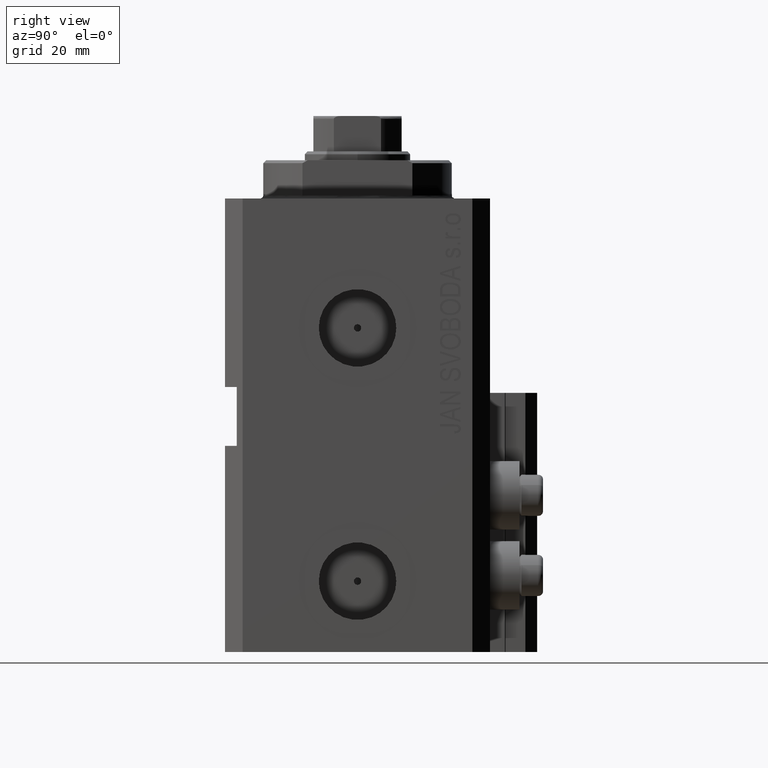
[diagram: clean part render]
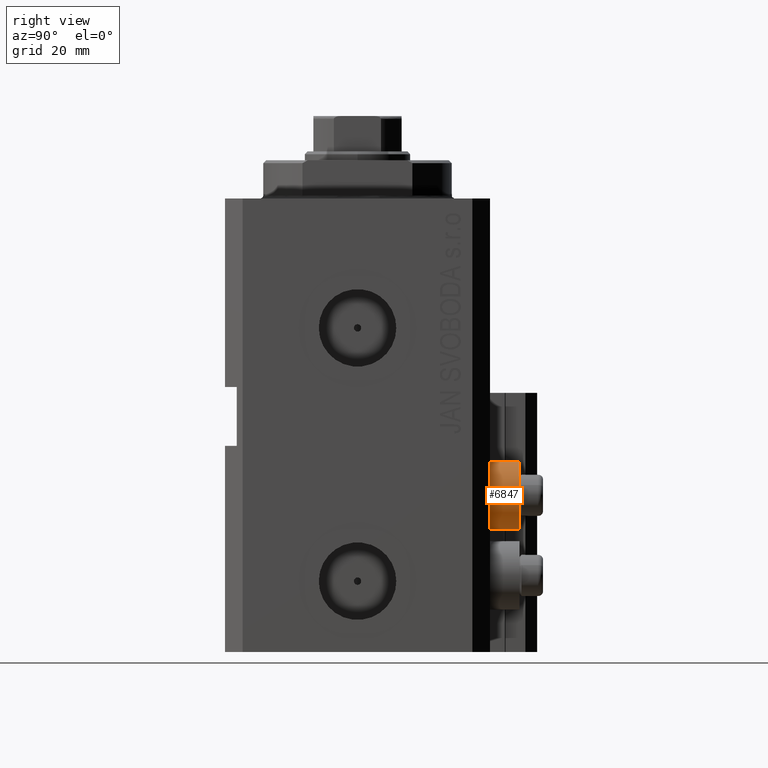
[diagram: same view with one face highlighted and labeled with its STEP entity id]
A machine part, right view. The second image highlights one B-rep face of the part: STEP entity #6847.
In plain terms, the highlighted cylindrical surface (edge-blend (fillet) strip) has radius 5.8 mm, axis along (0, 1, 0).
Its self-contained STEP definition (entity closure, byte-faithful):
#697 = CARTESIAN_POINT ( 'NONE',  ( 18.00000000000000355, 22.49999999999951328, -50.39999999999999858 ) ) ;
#758 = EDGE_CURVE ( 'NONE', #3643, #39462, #6313, .T. ) ;
#2782 = CARTESIAN_POINT ( 'NONE',  ( 18.00000000000000355, 22.49999999999951328, -56.20000000000000284 ) ) ;
#3278 = EDGE_CURVE ( 'NONE', #35332, #34404, #30304, .T. ) ;
#3643 = VERTEX_POINT ( 'NONE', #2782 ) ;
#6265 = FACE_OUTER_BOUND ( 'NONE', #8191, .T. ) ;
#6313 = CIRCLE ( 'NONE', #33256, 5.799999999999999822 ) ;
#6847 = ADVANCED_FACE ( 'NONE', ( #6265 ), #33901, .T. ) ;
#8191 = EDGE_LOOP ( 'NONE', ( #12027, #20891, #33074, #40934 ) ) ;
#9274 = CARTESIAN_POINT ( 'NONE',  ( 18.00000000000000355, 22.49999999999951328, -44.60000000000000142 ) ) ;
#9520 = CARTESIAN_POINT ( 'NONE',  ( 18.00000000000000355, 27.49999999996051514, -56.20000000000000284 ) ) ;
#10482 = AXIS2_PLACEMENT_3D ( 'NONE', #36170, #15821, #36405 ) ;
#12027 = ORIENTED_EDGE ( 'NONE', *, *, #758, .F. ) ;
#15821 = DIRECTION ( 'NONE',  ( 0.000000000000000000, 1.000000000000000000, 0.000000000000000000 ) ) ;
#18600 = CARTESIAN_POINT ( 'NONE',  ( 18.00000000000000355, 27.49999999996051514, -44.60000000000000142 ) ) ;
#19663 = DIRECTION ( 'NONE',  ( 0.000000000000000000, 1.000000000000000000, 0.000000000000000000 ) ) ;
#20465 = DIRECTION ( 'NONE',  ( 0.000000000000000000, 0.000000000000000000, 1.000000000000000000 ) ) ;
#20891 = ORIENTED_EDGE ( 'NONE', *, *, #30455, .T. ) ;
#23131 = DIRECTION ( 'NONE',  ( -0.000000000000000000, -1.000000000000000000, -0.000000000000000000 ) ) ;
#23398 = AXIS2_PLACEMENT_3D ( 'NONE', #46520, #46270, #20465 ) ;
#25597 = EDGE_CURVE ( 'NONE', #39462, #34404, #26085, .T. ) ;
#26085 = LINE ( 'NONE', #18600, #45533 ) ;
#28033 = CARTESIAN_POINT ( 'NONE',  ( 18.00000000000000355, 27.49999999996051514, -56.20000000000000284 ) ) ;
#30304 = CIRCLE ( 'NONE', #23398, 5.799999999999999822 ) ;
#30455 = EDGE_CURVE ( 'NONE', #3643, #35332, #38008, .T. ) ;
#33074 = ORIENTED_EDGE ( 'NONE', *, *, #3278, .T. ) ;
#33256 = AXIS2_PLACEMENT_3D ( 'NONE', #697, #23131, #41703 ) ;
#33901 = CYLINDRICAL_SURFACE ( 'NONE', #10482, 5.799999999999999822 ) ;
#34404 = VERTEX_POINT ( 'NONE', #38639 ) ;
#35332 = VERTEX_POINT ( 'NONE', #28033 ) ;
#36170 = CARTESIAN_POINT ( 'NONE',  ( 18.00000000000000355, 27.49999999996051514, -50.39999999999999858 ) ) ;
#36405 = DIRECTION ( 'NONE',  ( 0.000000000000000000, 0.000000000000000000, 1.000000000000000000 ) ) ;
#37185 = DIRECTION ( 'NONE',  ( 0.000000000000000000, 1.000000000000000000, 0.000000000000000000 ) ) ;
#38008 = LINE ( 'NONE', #9520, #42534 ) ;
#38639 = CARTESIAN_POINT ( 'NONE',  ( 18.00000000000000355, 27.49999999996051514, -44.60000000000000142 ) ) ;
#39462 = VERTEX_POINT ( 'NONE', #9274 ) ;
#40934 = ORIENTED_EDGE ( 'NONE', *, *, #25597, .F. ) ;
#41703 = DIRECTION ( 'NONE',  ( 0.000000000000000000, 0.000000000000000000, 1.000000000000000000 ) ) ;
#42534 = VECTOR ( 'NONE', #19663, 1000.000000000000000 ) ;
#45533 = VECTOR ( 'NONE', #37185, 1000.000000000000000 ) ;
#46270 = DIRECTION ( 'NONE',  ( -0.000000000000000000, -1.000000000000000000, -0.000000000000000000 ) ) ;
#46520 = CARTESIAN_POINT ( 'NONE',  ( 18.00000000000000355, 27.49999999996051514, -50.39999999999999858 ) ) ;